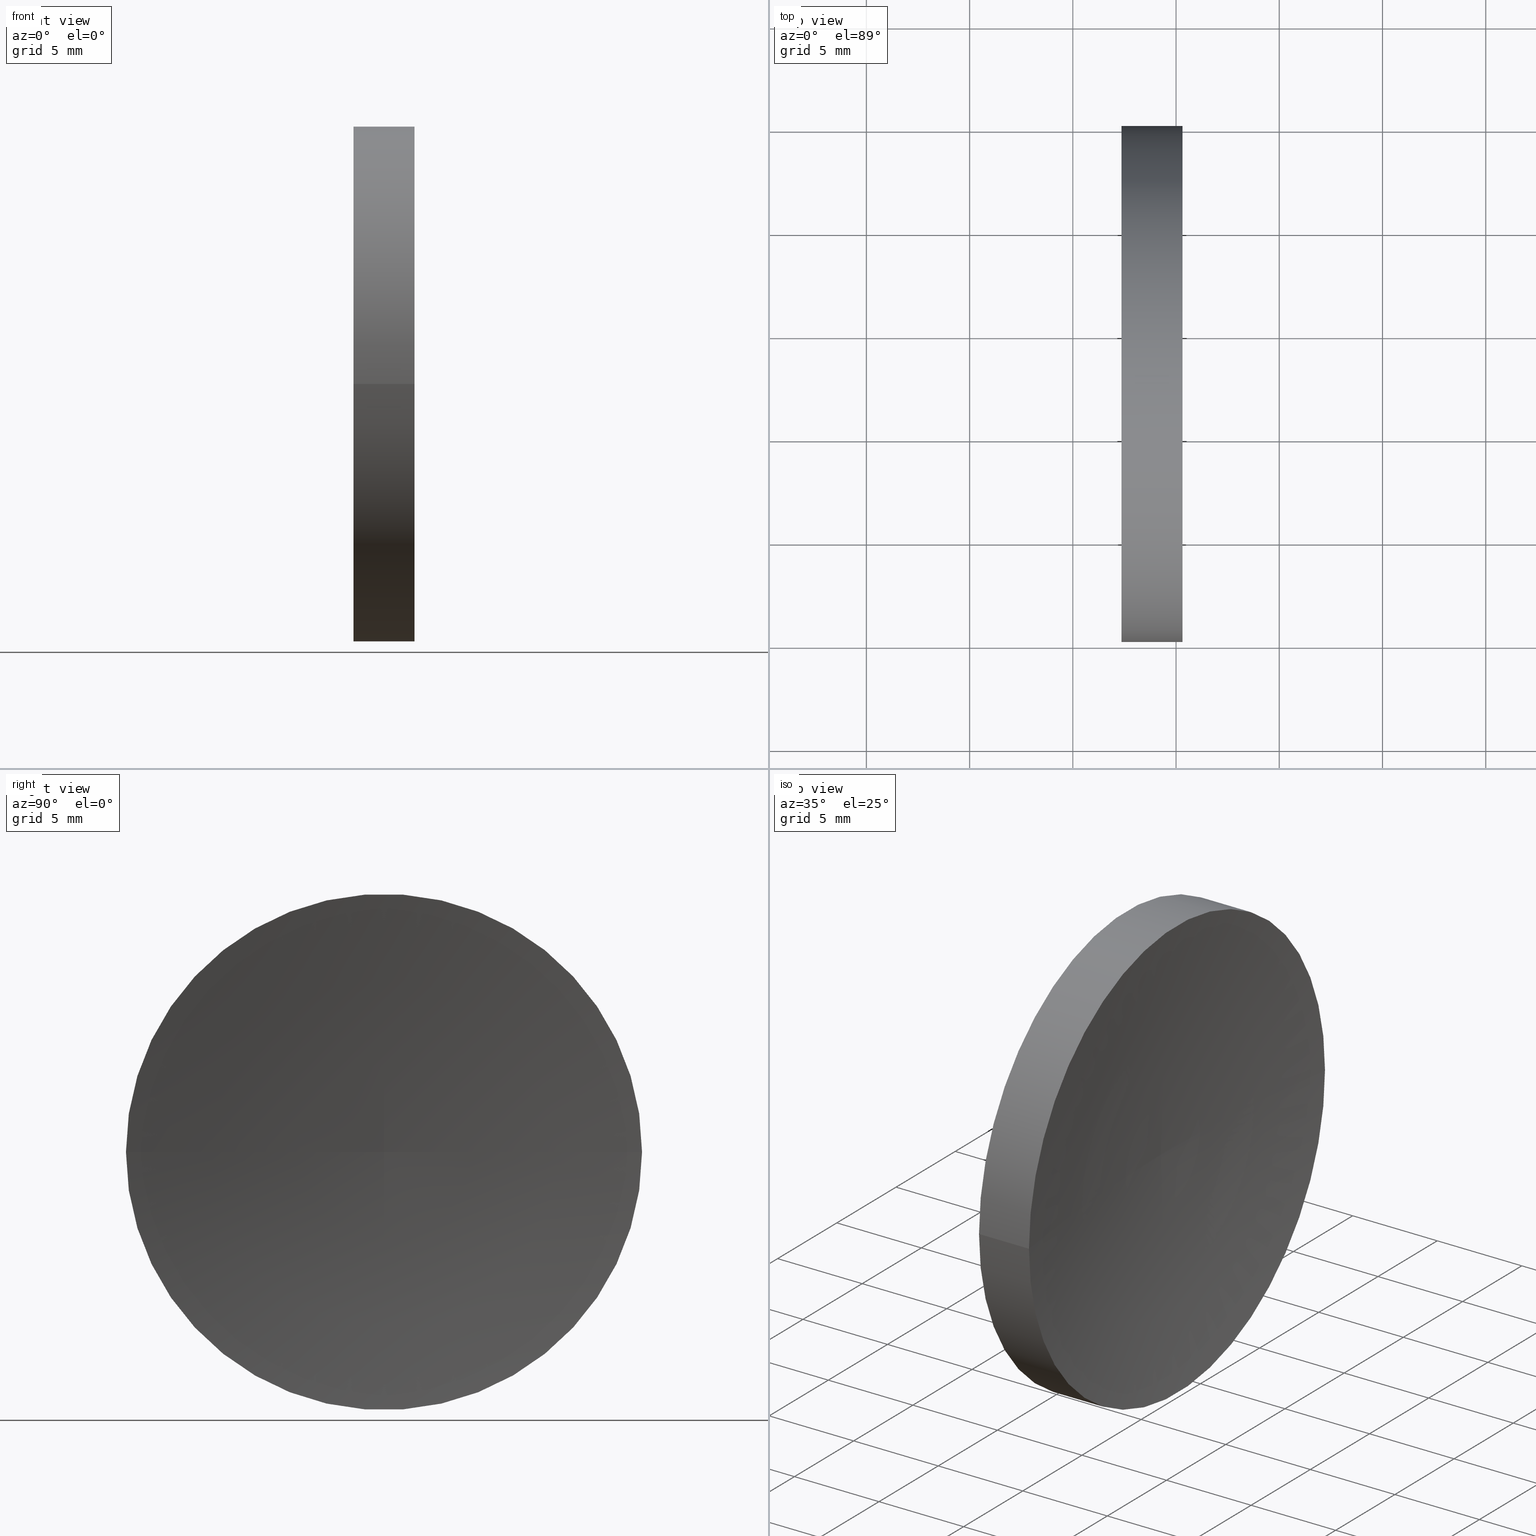
[diagram: canonical four-view strip — front | top / right | iso, engineering-drawing reading convention]
A machine part, canonical four-view strip (front | top / right | iso — engineering-drawing reading convention). The complete STEP part file that produces these views, byte-faithful:
ISO-10303-21;
HEADER;
FILE_DESCRIPTION (( 'STEP AP214' ),
    '1' );
FILE_NAME ('120157.STEP',
    '2019-06-20T07:36:49',
    ( '' ),
    ( '' ),
    'SwSTEP 2.0',
    'SolidWorks 2016',
    '' );
FILE_SCHEMA (( 'AUTOMOTIVE_DESIGN' ));
ENDSEC;

DATA;
#1 = CARTESIAN_POINT ( 'NONE',  ( 57.35819015802111000, 32.57872591329309800, 0.0000000000000000000 ) ) ;
#2 = CARTESIAN_POINT ( 'NONE',  ( 141.9781882486672100, 32.56096354764692800, -2.175262423378643000E-018 ) ) ;
#3 = EDGE_CURVE ( 'NONE', #114, #83, #98, .T. ) ;
#4 = CARTESIAN_POINT ( 'NONE',  ( 60.31197721033621700, 45.07872591329306300, 1.530808498934187800E-015 ) ) ;
#5 = ORIENTED_EDGE ( 'NONE', *, *, #11, .F. ) ;
#6 = DIRECTION ( 'NONE',  ( -5.551115123125784700E-016, -1.000000000000000000, 0.0000000000000000000 ) ) ;
#7 = ADVANCED_FACE ( 'NONE', ( #38 ), #150, .F. ) ;
#8 = LINE ( 'NONE', #129, #125 ) ;
#9 = EDGE_LOOP ( 'NONE', ( #56, #96, #108 ) ) ;
#10 = UNCERTAINTY_MEASURE_WITH_UNIT (LENGTH_MEASURE( 1.000000000000000100E-005 ), #118, 'distance_accuracy_value', 'NONE');
#11 = EDGE_CURVE ( 'NONE', #114, #60, #52, .T. ) ;
#12 = FACE_OUTER_BOUND ( 'NONE', #9, .T. ) ;
#13 = SURFACE_STYLE_USAGE ( .BOTH. , #154 ) ;
#14 = CARTESIAN_POINT ( 'NONE',  ( 141.9781882486672100, 32.57872591329302700, 0.0000000000000000000 ) ) ;
#15 = DIRECTION ( 'NONE',  ( 0.0000000000000000000, -0.0000000000000000000, -1.000000000000000000 ) ) ;
#16 = APPLICATION_PROTOCOL_DEFINITION ( 'draft international standard', 'automotive_design', 1998, #117 ) ;
#17 = DIRECTION ( 'NONE',  ( 0.0000000000000000000, -1.000000000000000000, -1.224646799147353200E-016 ) ) ;
#18 = CARTESIAN_POINT ( 'NONE',  ( 57.35819015802111000, 32.57872591329309800, 0.0000000000000000000 ) ) ;
#19 = ORIENTED_EDGE ( 'NONE', *, *, #3, .F. ) ;
#20 = PRODUCT_DEFINITION_CONTEXT ( 'detailed design', #104, 'design' ) ;
#21 = EDGE_LOOP ( 'NONE', ( #86, #54 ) ) ;
#22 = PRODUCT_DEFINITION ( 'δ֪', '', #42, #20 ) ;
#23 = AXIS2_PLACEMENT_3D ( 'NONE', #82, #68, #95 ) ;
#24 = MANIFOLD_SOLID_BREP ( '��ת1', #138 ) ;
#25 = CYLINDRICAL_SURFACE ( 'NONE', #151, 12.50000000000000000 ) ;
#26 = FILL_AREA_STYLE_COLOUR ( '', #112 ) ;
#27 = FACE_OUTER_BOUND ( 'NONE', #48, .T. ) ;
#28 = PLANE ( 'NONE',  #164 ) ;
#29 = APPLICATION_PROTOCOL_DEFINITION ( 'draft international standard', 'automotive_design', 1998, #104 ) ;
#30 = DIRECTION ( 'NONE',  ( -1.000000000000000000, 7.636108817321419600E-016, -0.0000000000000000000 ) ) ;
#31 =( LENGTH_UNIT ( ) NAMED_UNIT ( * ) SI_UNIT ( .MILLI., .METRE. ) );
#32 = PRESENTATION_STYLE_ASSIGNMENT (( #13 ) ) ;
#33 = CYLINDRICAL_SURFACE ( 'NONE', #23, 12.50000000000000000 ) ;
#34 = FACE_OUTER_BOUND ( 'NONE', #135, .T. ) ;
#35 = PRESENTATION_LAYER_ASSIGNMENT (  '', '', ( #139 ) ) ;
#36 = DIRECTION ( 'NONE',  ( -7.636108817321419600E-016, -1.000000000000000000, 0.0000000000000000000 ) ) ;
#37 = CARTESIAN_POINT ( 'NONE',  ( 141.9781882486672100, 32.57872591329302700, 0.0000000000000000000 ) ) ;
#38 = FACE_OUTER_BOUND ( 'NONE', #153, .T. ) ;
#39 = FILL_AREA_STYLE_COLOUR ( '', #141 ) ;
#40 = DIRECTION ( 'NONE',  ( -1.000000000000000000, 7.636108817321419600E-016, -0.0000000000000000000 ) ) ;
#41 = MECHANICAL_DESIGN_GEOMETRIC_PRESENTATION_REPRESENTATION (  '', ( #79 ), #53 ) ;
#42 = PRODUCT_DEFINITION_FORMATION_WITH_SPECIFIED_SOURCE ( '�κ�', '', #74, .NOT_KNOWN. ) ;
#43 = DIRECTION ( 'NONE',  ( 1.000000000000000000, 0.0000000000000000000, 0.0000000000000000000 ) ) ;
#44 = ORIENTED_EDGE ( 'NONE', *, *, #73, .F. ) ;
#45 =( NAMED_UNIT ( * ) SI_UNIT ( $, .STERADIAN. ) SOLID_ANGLE_UNIT ( ) );
#46 = ADVANCED_BREP_SHAPE_REPRESENTATION ( '120157', ( #24, #51 ), #130 ) ;
#47 = ADVANCED_FACE ( 'NONE', ( #163 ), #28, .F. ) ;
#48 = EDGE_LOOP ( 'NONE', ( #107, #122, #152, #76 ) ) ;
#49 = ADVANCED_FACE ( 'NONE', ( #12 ), #88, .F. ) ;
#50 = ORIENTED_EDGE ( 'NONE', *, *, #94, .T. ) ;
#51 = AXIS2_PLACEMENT_3D ( 'NONE', #93, #92, #43 ) ;
#52 = CIRCLE ( 'NONE', #113, 12.50000000000000000 ) ;
#53 =( GEOMETRIC_REPRESENTATION_CONTEXT ( 3 ) GLOBAL_UNCERTAINTY_ASSIGNED_CONTEXT ( ( #70 ) ) GLOBAL_UNIT_ASSIGNED_CONTEXT ( ( #78, #115, #143 ) ) REPRESENTATION_CONTEXT ( 'NONE', 'WORKASPACE' ) );
#54 = ORIENTED_EDGE ( 'NONE', *, *, #73, .T. ) ;
#55 = DIRECTION ( 'NONE',  ( -1.000000000000000000, 7.636108817321419600E-016, -0.0000000000000000000 ) ) ;
#56 = ORIENTED_EDGE ( 'NONE', *, *, #99, .F. ) ;
#57 = SURFACE_SIDE_STYLE ('',( #127 ) ) ;
#58 = VERTEX_POINT ( 'NONE', #145 ) ;
#59 = DIRECTION ( 'NONE',  ( -5.551115123125782700E-016, -1.000000000000000000, 0.0000000000000000000 ) ) ;
#60 = VERTEX_POINT ( 'NONE', #140 ) ;
#61 = PRODUCT_DEFINITION_SHAPE ( 'NONE', 'NONE',  #22 ) ;
#62 = DIRECTION ( 'NONE',  ( -1.000000000000000000, 7.636108817321419600E-016, -0.0000000000000000000 ) ) ;
#63 = ORIENTED_EDGE ( 'NONE', *, *, #67, .F. ) ;
#64 = CARTESIAN_POINT ( 'NONE',  ( 55.00739462442118800, 45.07872591329309100, 1.530808498934191500E-015 ) ) ;
#65 = DIRECTION ( 'NONE',  ( -5.551115123125782700E-016, -1.000000000000000000, 0.0000000000000000000 ) ) ;
#66 = DIRECTION ( 'NONE',  ( -1.000000000000000000, 7.636108817321419600E-016, -0.0000000000000000000 ) ) ;
#67 = EDGE_CURVE ( 'NONE', #60, #100, #148, .T. ) ;
#68 = DIRECTION ( 'NONE',  ( -1.000000000000000000, 7.636108817321419600E-016, -0.0000000000000000000 ) ) ;
#69 = DIRECTION ( 'NONE',  ( -1.000000000000000000, 0.0000000000000000000, 0.0000000000000000000 ) ) ;
#70 = UNCERTAINTY_MEASURE_WITH_UNIT (LENGTH_MEASURE( 1.000000000000000100E-005 ), #78, 'distance_accuracy_value', 'NONE');
#71 = PRODUCT_CONTEXT ( 'NONE', #117, 'mechanical' ) ;
#72 = SURFACE_STYLE_FILL_AREA ( #77 ) ;
#73 = EDGE_CURVE ( 'NONE', #83, #58, #110, .T. ) ;
#74 = PRODUCT ( '120157', '120157', '', ( #71 ) ) ;
#75 = ORIENTED_EDGE ( 'NONE', *, *, #99, .T. ) ;
#76 = ORIENTED_EDGE ( 'NONE', *, *, #94, .F. ) ;
#77 = FILL_AREA_STYLE ('',( #26 ) ) ;
#78 =( LENGTH_UNIT ( ) NAMED_UNIT ( * ) SI_UNIT ( .MILLI., .METRE. ) );
#79 = STYLED_ITEM ( 'NONE', ( #32 ), #24 ) ;
#80 = CARTESIAN_POINT ( 'NONE',  ( 57.35819015802111000, 32.57872591329309100, 0.0000000000000000000 ) ) ;
#81 =( NAMED_UNIT ( * ) SI_UNIT ( $, .STERADIAN. ) SOLID_ANGLE_UNIT ( ) );
#82 = CARTESIAN_POINT ( 'NONE',  ( 55.00739462442118100, 32.57872591329309800, 0.0000000000000000000 ) ) ;
#83 = VERTEX_POINT ( 'NONE', #128 ) ;
#84 = CARTESIAN_POINT ( 'NONE',  ( 60.31197721033621700, 32.57872591329309100, 0.0000000000000000000 ) ) ;
#85 = DIRECTION ( 'NONE',  ( -1.000000000000000000, 7.636108817321419600E-016, -0.0000000000000000000 ) ) ;
#86 = ORIENTED_EDGE ( 'NONE', *, *, #155, .T. ) ;
#87 = VECTOR ( 'NONE', #55, 1000.000000000000000 ) ;
#88 = TOROIDAL_SURFACE ( 'NONE', #97, -0.01776236564610420700, 82.62000000000000500 ) ;
#89 = CARTESIAN_POINT ( 'NONE',  ( 60.31197721033621700, 32.57872591329309100, 0.0000000000000000000 ) ) ;
#90 = CARTESIAN_POINT ( 'NONE',  ( 141.9781882486672100, 32.59648827893912700, 0.0000000000000000000 ) ) ;
#91 = DIRECTION ( 'NONE',  ( 7.636108817321419600E-016, 1.000000000000000000, 0.0000000000000000000 ) ) ;
#92 = DIRECTION ( 'NONE',  ( 0.0000000000000000000, 0.0000000000000000000, 1.000000000000000000 ) ) ;
#93 = CARTESIAN_POINT ( 'NONE',  ( 0.0000000000000000000, 0.0000000000000000000, 0.0000000000000000000 ) ) ;
#94 = EDGE_CURVE ( 'NONE', #60, #58, #8, .T. ) ;
#95 = DIRECTION ( 'NONE',  ( -5.551115123125782700E-016, -1.000000000000000000, 0.0000000000000000000 ) ) ;
#96 = ORIENTED_EDGE ( 'NONE', *, *, #144, .F. ) ;
#97 = AXIS2_PLACEMENT_3D ( 'NONE', #37, #142, #36 ) ;
#98 = LINE ( 'NONE', #64, #87 ) ;
#99 = EDGE_CURVE ( 'NONE', #114, #100, #137, .T. ) ;
#100 = VERTEX_POINT ( 'NONE', #120 ) ;
#101 = DIRECTION ( 'NONE',  ( -7.636108817321419600E-016, -1.000000000000000000, 0.0000000000000000000 ) ) ;
#102 = SHAPE_DEFINITION_REPRESENTATION ( #61, #46 ) ;
#103 = AXIS2_PLACEMENT_3D ( 'NONE', #14, #116, #101 ) ;
#104 = APPLICATION_CONTEXT ( 'automotive_design' ) ;
#105 = ADVANCED_FACE ( 'NONE', ( #27 ), #25, .T. ) ;
#106 = PRESENTATION_STYLE_ASSIGNMENT (( #147 ) ) ;
#107 = ORIENTED_EDGE ( 'NONE', *, *, #144, .T. ) ;
#108 = ORIENTED_EDGE ( 'NONE', *, *, #67, .T. ) ;
#109 = PRESENTATION_LAYER_ASSIGNMENT (  '', '', ( #79 ) ) ;
#110 = CIRCLE ( 'NONE', #111, 12.49999999999999600 ) ;
#111 = AXIS2_PLACEMENT_3D ( 'NONE', #18, #85, #158 ) ;
#112 = COLOUR_RGB ( '',1.000000000000000000, 1.000000000000000000, 1.000000000000000000 ) ;
#113 = AXIS2_PLACEMENT_3D ( 'NONE', #89, #62, #65 ) ;
#114 = VERTEX_POINT ( 'NONE', #4 ) ;
#115 =( NAMED_UNIT ( * ) PLANE_ANGLE_UNIT ( ) SI_UNIT ( $, .RADIAN. ) );
#116 = DIRECTION ( 'NONE',  ( -1.000000000000000000, 7.636108817321419600E-016, -0.0000000000000000000 ) ) ;
#117 = APPLICATION_CONTEXT ( 'automotive_design' ) ;
#118 =( LENGTH_UNIT ( ) NAMED_UNIT ( * ) SI_UNIT ( .MILLI., .METRE. ) );
#119 = AXIS2_PLACEMENT_3D ( 'NONE', #2, #149, #17 ) ;
#120 = CARTESIAN_POINT ( 'NONE',  ( 59.35819015802110200, 32.57872591329309100, 0.0000000000000000000 ) ) ;
#121 =( NAMED_UNIT ( * ) PLANE_ANGLE_UNIT ( ) SI_UNIT ( $, .RADIAN. ) );
#122 = ORIENTED_EDGE ( 'NONE', *, *, #3, .T. ) ;
#123 = AXIS2_PLACEMENT_3D ( 'NONE', #84, #66, #160 ) ;
#124 = MECHANICAL_DESIGN_GEOMETRIC_PRESENTATION_REPRESENTATION (  '', ( #139 ), #165 ) ;
#125 = VECTOR ( 'NONE', #159, 1000.000000000000000 ) ;
#126 = DIRECTION ( 'NONE',  ( 1.000000000000000000, -7.636108817321419600E-016, 0.0000000000000000000 ) ) ;
#127 = SURFACE_STYLE_FILL_AREA ( #131 ) ;
#128 = CARTESIAN_POINT ( 'NONE',  ( 57.35819015802111700, 45.07872591329309100, 1.530808498934191900E-015 ) ) ;
#129 = CARTESIAN_POINT ( 'NONE',  ( 55.00739462442117400, 20.07872591329309500, 0.0000000000000000000 ) ) ;
#130 =( GEOMETRIC_REPRESENTATION_CONTEXT ( 3 ) GLOBAL_UNCERTAINTY_ASSIGNED_CONTEXT ( ( #166 ) ) GLOBAL_UNIT_ASSIGNED_CONTEXT ( ( #31, #121, #45 ) ) REPRESENTATION_CONTEXT ( 'NONE', 'WORKASPACE' ) );
#131 = FILL_AREA_STYLE ('',( #39 ) ) ;
#132 = AXIS2_PLACEMENT_3D ( 'NONE', #90, #15, #69 ) ;
#133 = ADVANCED_FACE ( 'NONE', ( #34 ), #33, .T. ) ;
#134 = CARTESIAN_POINT ( 'NONE',  ( 55.00739462442118100, 32.57872591329309800, 0.0000000000000000000 ) ) ;
#135 = EDGE_LOOP ( 'NONE', ( #19, #146, #50, #44 ) ) ;
#136 = PRODUCT_RELATED_PRODUCT_CATEGORY ( 'part', '', ( #74 ) ) ;
#137 = CIRCLE ( 'NONE', #119, 82.62000000000000500 ) ;
#138 = CLOSED_SHELL ( 'NONE', ( #105, #7, #49, #133, #47 ) ) ;
#139 = STYLED_ITEM ( 'NONE', ( #106 ), #46 ) ;
#140 = CARTESIAN_POINT ( 'NONE',  ( 60.31197721033620200, 20.07872591329312000, 0.0000000000000000000 ) ) ;
#141 = COLOUR_RGB ( '',1.000000000000000000, 1.000000000000000000, 1.000000000000000000 ) ;
#142 = DIRECTION ( 'NONE',  ( -1.000000000000000000, 7.636108817321419600E-016, -0.0000000000000000000 ) ) ;
#143 =( NAMED_UNIT ( * ) SI_UNIT ( $, .STERADIAN. ) SOLID_ANGLE_UNIT ( ) );
#144 = EDGE_CURVE ( 'NONE', #60, #114, #157, .T. ) ;
#145 = CARTESIAN_POINT ( 'NONE',  ( 57.35819015802110200, 20.07872591329309800, 0.0000000000000000000 ) ) ;
#146 = ORIENTED_EDGE ( 'NONE', *, *, #11, .T. ) ;
#147 = SURFACE_STYLE_USAGE ( .BOTH. , #57 ) ;
#148 = CIRCLE ( 'NONE', #132, 82.62000000000000500 ) ;
#149 = DIRECTION ( 'NONE',  ( -9.351536221073556900E-032, -1.224646799147353200E-016, 1.000000000000000000 ) ) ;
#150 = TOROIDAL_SURFACE ( 'NONE', #103, -0.01776236564610420700, 82.62000000000000500 ) ;
#151 = AXIS2_PLACEMENT_3D ( 'NONE', #134, #30, #59 ) ;
#152 = ORIENTED_EDGE ( 'NONE', *, *, #155, .F. ) ;
#153 = EDGE_LOOP ( 'NONE', ( #5, #75, #63 ) ) ;
#154 = SURFACE_SIDE_STYLE ('',( #72 ) ) ;
#155 = EDGE_CURVE ( 'NONE', #58, #83, #161, .T. ) ;
#156 =( NAMED_UNIT ( * ) PLANE_ANGLE_UNIT ( ) SI_UNIT ( $, .RADIAN. ) );
#157 = CIRCLE ( 'NONE', #123, 12.50000000000000000 ) ;
#158 = DIRECTION ( 'NONE',  ( -5.551115123125784700E-016, -1.000000000000000000, 0.0000000000000000000 ) ) ;
#159 = DIRECTION ( 'NONE',  ( -1.000000000000000000, 7.636108817321419600E-016, -0.0000000000000000000 ) ) ;
#160 = DIRECTION ( 'NONE',  ( -5.551115123125782700E-016, -1.000000000000000000, 0.0000000000000000000 ) ) ;
#161 = CIRCLE ( 'NONE', #162, 12.49999999999999600 ) ;
#162 = AXIS2_PLACEMENT_3D ( 'NONE', #1, #40, #6 ) ;
#163 = FACE_OUTER_BOUND ( 'NONE', #21, .T. ) ;
#164 = AXIS2_PLACEMENT_3D ( 'NONE', #80, #126, #91 ) ;
#165 =( GEOMETRIC_REPRESENTATION_CONTEXT ( 3 ) GLOBAL_UNCERTAINTY_ASSIGNED_CONTEXT ( ( #10 ) ) GLOBAL_UNIT_ASSIGNED_CONTEXT ( ( #118, #156, #81 ) ) REPRESENTATION_CONTEXT ( 'NONE', 'WORKASPACE' ) );
#166 = UNCERTAINTY_MEASURE_WITH_UNIT (LENGTH_MEASURE( 1.000000000000000100E-005 ), #31, 'distance_accuracy_value', 'NONE');
ENDSEC;
END-ISO-10303-21;
